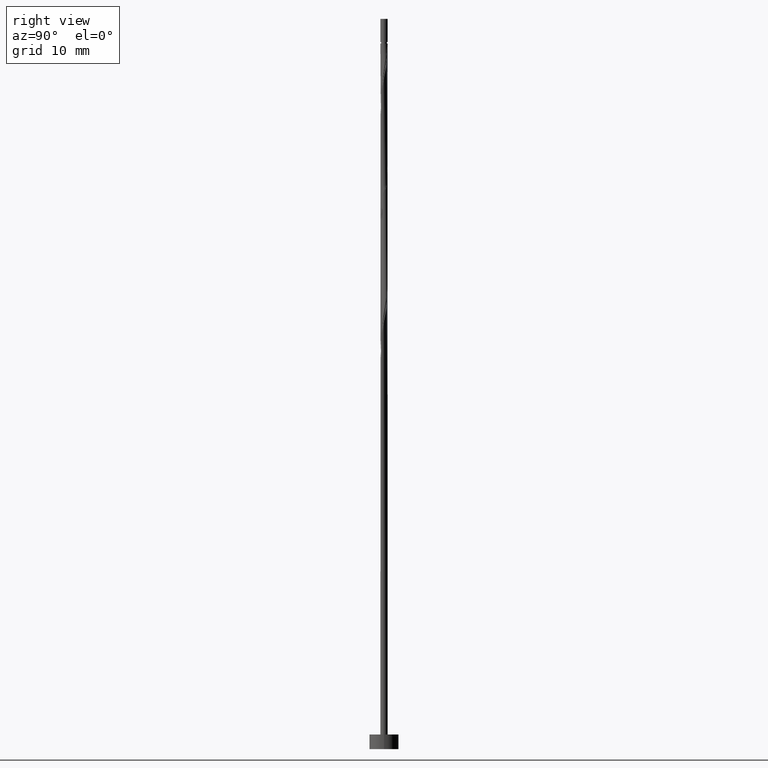
[diagram: clean part render]
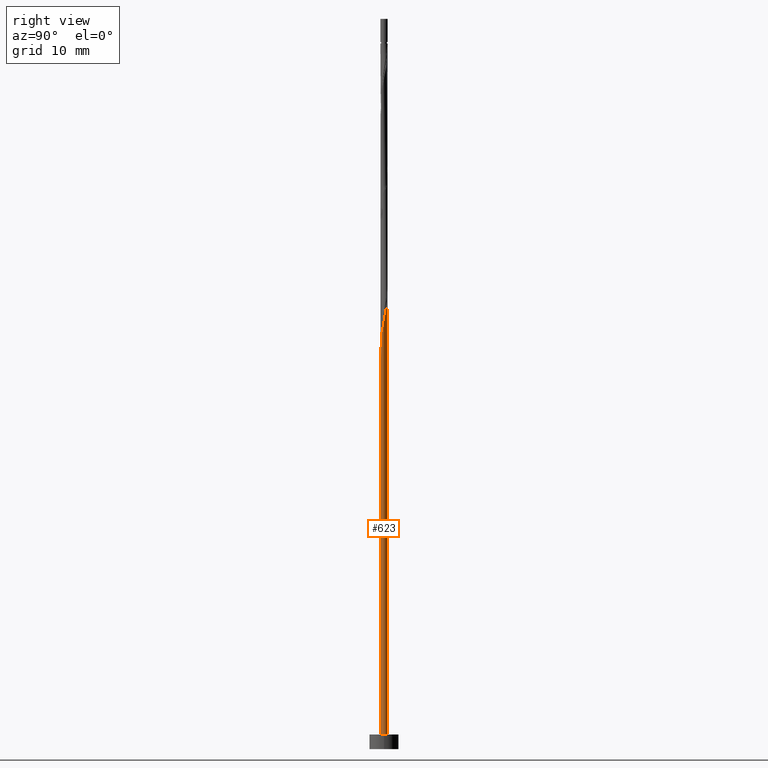
[diagram: same view with one face highlighted and labeled with its STEP entity id]
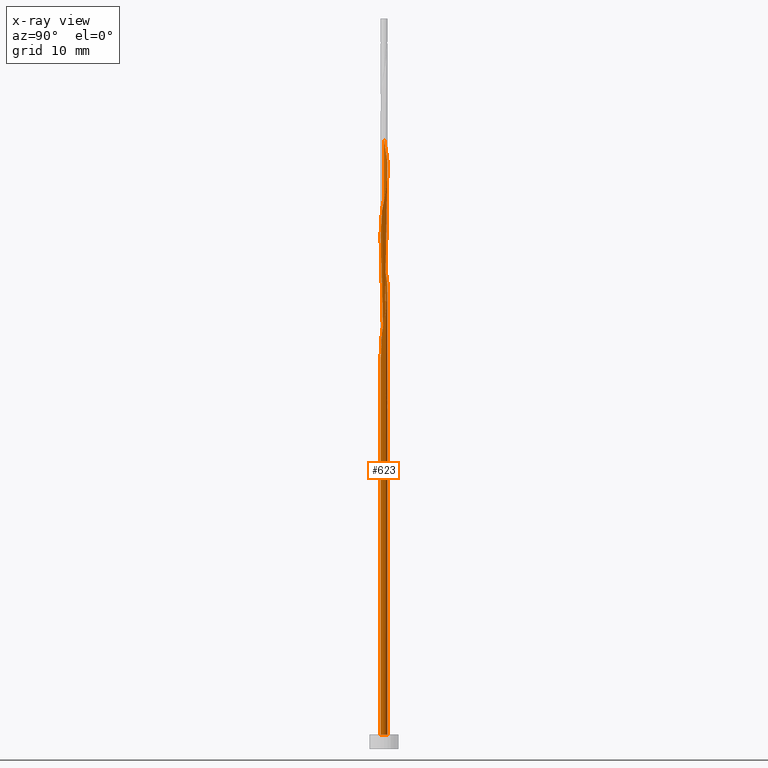
[diagram: x-ray of the same camera — body ghosted, the highlighted face saturated]
A machine part, right view. The second image highlights one B-rep face of the part: STEP entity #623.
The next image is the same camera in x-ray: the body ghosted, the highlighted face saturated — about 0% of this face is hidden behind the body in this view.
In plain terms, the highlighted cylindrical surface (bore or boss wall) has radius 0.5 mm, axis along (-0, -0, -1).
Its self-contained STEP definition (entity closure, byte-faithful):
#7 = CARTESIAN_POINT ( 'NONE',  ( -0.4975590398240158918, -0.1010336722130057152, 50.78496922904236044 ) ) ;
#12 = CARTESIAN_POINT ( 'NONE',  ( -0.3362772466861008724, 0.3803819322636879940, 64.67385811793124617 ) ) ;
#13 = ORIENTED_EDGE ( 'NONE', *, *, #1249, .T. ) ;
#15 = CARTESIAN_POINT ( 'NONE',  ( -0.2387454690295326420, -0.4393183367648896831, 53.09978404385717710 ) ) ;
#72 = CARTESIAN_POINT ( 'NONE',  ( -0.1612817931379151026, 0.4814156044766937925, 48.00719145126458187 ) ) ;
#81 = CARTESIAN_POINT ( 'NONE',  ( 0.3911863884632767463, -0.3114052174917096849, 73.47015441422750825 ) ) ;
#96 = CARTESIAN_POINT ( 'NONE',  ( 0.5021081091789605377, -0.07523461788412863505, 74.85904330311646504 ) ) ;
#99 = CARTESIAN_POINT ( 'NONE',  ( -0.2387454690295326420, -0.4393183367648896831, 69.76645071052384139 ) ) ;
#105 = CARTESIAN_POINT ( 'NONE',  ( -0.4329970070769387780, -0.2651158103430558133, 68.37756182163495566 ) ) ;
#111 =( BOUNDED_CURVE ( )  B_SPLINE_CURVE ( 2, ( #1265, #1064, #428, #7, #219, #657, #953, #210, #15, #748, #1269, #550, #941, #1367, #117, #451, #320, #331, #844, #1259, #965, #858, #1250, #308, #733, #1150, #240, #1050, #317, #207, #1060, #739, #548, #12, #1171, #448, #203, #655, #1069, #114, #556, #105, #197, #639, #99, #534, #1364, #1136, #418, #285, #838, #715, #81, #1251, #309, #96, #530, #859, #770, #566, #875, #544, #959, #1292, #1178, #749, #1161, #763, #211, #233, #651, #559, #1173, #1072, #1066 ),
 .UNSPECIFIED., .F., .T. ) 
 B_SPLINE_CURVE_WITH_KNOTS ( ( 3, 2, 2, 2, 2, 2, 2, 2, 2, 2, 2, 2, 2, 2, 2, 2, 2, 2, 2, 2, 2, 2, 2, 2, 2, 2, 2, 2, 2, 2, 2, 2, 2, 2, 2, 2, 2, 3 ),
 ( 0.05452480538552874345, 0.05555555555555558023, 0.06944444444444441977, 0.08333333333333337034, 0.09722222222222220989, 0.1111111111111111605, 0.1250000000000000000, 0.1388888888888888395, 0.1527777777777777901, 0.1666666666666666297, 0.1805555555555555802, 0.1944444444444444198, 0.2083333333333333703, 0.2222222222222222099, 0.2361111111111111605, 0.2500000000000000000, 0.2638888888888888395, 0.2777777777777777901, 0.2916666666666666297, 0.3055555555555555802, 0.3194444444444444198, 0.3333333333333333703, 0.3472222222222222099, 0.3611111111111111605, 0.3750000000000000000, 0.3888888888888888395, 0.4027777777777777901, 0.4166666666666666297, 0.4305555555555555802, 0.4444444444444444198, 0.4583333333333333703, 0.4722222222222222099, 0.4861111111111111605, 0.5000000000000000000, 0.5138888888888888395, 0.5277777777777777901, 0.5416666666666667407, 0.5545248053855290626 ),
 .UNSPECIFIED. ) 
 CURVE ( )  GEOMETRIC_REPRESENTATION_ITEM ( )  RATIONAL_B_SPLINE_CURVE ( ( 0.9071930855141244754, 0.9080659294509723090, 0.9090909090909128354, 0.8952797754656471874, 0.9090909090909128354, 0.8952797754656471874, 0.9090909090909128354, 0.8952797754656471874, 0.9090909090909128354, 0.8952797754656471874, 0.9090909090909128354, 0.8952797754656471874, 0.9090909090909128354, 0.8952797754656471874, 0.9090909090909128354, 0.8952797754656471874, 0.9090909090909128354, 0.8952797754656471874, 0.9090909090909128354, 0.8952797754656471874, 0.9090909090909128354, 0.8952797754656471874, 0.9090909090909128354, 0.8952797754656471874, 0.9090909090909128354, 0.8952797754656471874, 0.9090909090909128354, 0.8952797754656471874, 0.9090909090909128354, 0.8952797754656471874, 0.9090909090909128354, 0.8952797754656471874, 0.9090909090909128354, 0.8952797754656471874, 0.9090909090909128354, 0.8952797754656471874, 0.9090909090909128354, 0.8952797754656471874, 0.9090909090909128354, 0.8952797754656471874, 0.9090909090909128354, 0.8952797754656471874, 0.9090909090909128354, 0.8952797754656471874, 0.9090909090909128354, 0.8952797754656471874, 0.9090909090909128354, 0.8952797754656471874, 0.9090909090909128354, 0.8952797754656471874, 0.9090909090909128354, 0.8952797754656471874, 0.9090909090909128354, 0.8952797754656471874, 0.9090909090909128354, 0.8952797754656471874, 0.9090909090909128354, 0.8952797754656471874, 0.9090909090909128354, 0.8952797754656471874, 0.9090909090909128354, 0.8952797754656471874, 0.9090909090909128354, 0.8952797754656471874, 0.9090909090909128354, 0.8952797754656471874, 0.9090909090909128354, 0.8952797754656471874, 0.9090909090909128354, 0.8952797754656471874, 0.9090909090909128354, 0.8952797754656471874, 0.9090909090909128354, 0.8963047551055872697, 0.9071930855141250305 ) ) 
 REPRESENTATION_ITEM ( '' )  );
#114 = CARTESIAN_POINT ( 'NONE',  ( -0.4975590398240158918, -0.1010336722130057152, 67.45163589570903184 ) ) ;
#117 = CARTESIAN_POINT ( 'NONE',  ( 0.2610881054719553229, -0.4264188096004510875, 55.87756182163496277 ) ) ;
#118 = CARTESIAN_POINT ( 'NONE',  ( -0.4975590398240160028, 0.1010336722130057568, 50.78496922904235333 ) ) ;
#134 = CARTESIAN_POINT ( 'NONE',  ( -0.3362772466861008724, 0.3803819322636879940, 48.00719145126458187 ) ) ;
#168 = AXIS2_PLACEMENT_3D ( 'NONE', #633, #410, #1247 ) ;
#185 = CARTESIAN_POINT ( 'NONE',  ( -0.3162091449211504313, 0.3972210690530861843, 48.93311737719051280 ) ) ;
#190 = CYLINDRICAL_SURFACE ( 'NONE', #168, 0.5000000000000000000 ) ;
#192 =( BOUNDED_CURVE ( )  B_SPLINE_CURVE ( 2, ( #1340, #1065, #850, #118, #867, #696, #258, #185, #1014, #72, #415, #834, #305 ),
 .UNSPECIFIED., .F., .T. ) 
 B_SPLINE_CURVE_WITH_KNOTS ( ( 3, 2, 2, 2, 2, 2, 3 ),
 ( 0.9295248053855291737, 0.9305555555555555802, 0.9444444444444444198, 0.9583333333333333703, 0.9722222222222222099, 0.9861111111111111605, 1.000000000000000000 ),
 .UNSPECIFIED. ) 
 CURVE ( )  GEOMETRIC_REPRESENTATION_ITEM ( )  RATIONAL_B_SPLINE_CURVE ( ( 0.9071930855141259187, 0.9080659294509735302, 0.9090909090909135015, 0.8952797754656478535, 0.9090909090909135015, 0.8952797754656478535, 0.9090909090909135015, 0.8952797754656478535, 0.9090909090909135015, 0.8952797754656478535, 0.9090909090909135015, 0.8952797754656478535, 0.9090909090909135015 ) ) 
 REPRESENTATION_ITEM ( '' )  );
#197 = CARTESIAN_POINT ( 'NONE',  ( -0.3746030759990445214, -0.3311684396980708045, 68.84052478459791757 ) ) ;
#203 = CARTESIAN_POINT ( 'NONE',  ( -0.4741018197097064957, 0.1588315603019298528, 66.06274700682013190 ) ) ;
#207 = CARTESIAN_POINT ( 'NONE',  ( -0.01309852316351411104, 0.5075443130627870225, 62.82200626607940563 ) ) ;
#210 = CARTESIAN_POINT ( 'NONE',  ( -0.3162091449211503758, -0.3972210690530861288, 52.63682108089421519 ) ) ;
#211 = CARTESIAN_POINT ( 'NONE',  ( -0.2610881054719554339, 0.4264188096004510875, 80.87756182163495566 ) ) ;
#213 = VERTEX_POINT ( 'NONE', #402 ) ;
#219 = CARTESIAN_POINT ( 'NONE',  ( -0.4652780234504771406, -0.1830747412780306671, 51.24793219200530814 ) ) ;
#233 = CARTESIAN_POINT ( 'NONE',  ( -0.3362772466861008724, 0.3803819322636879940, 81.34052478459793178 ) ) ;
#240 = CARTESIAN_POINT ( 'NONE',  ( 0.2387454690295327808, 0.4393183367648896831, 61.43311737719050569 ) ) ;
#245 = EDGE_CURVE ( 'NONE', #479, #1264, #1118, .T. ) ;
#251 = CARTESIAN_POINT ( 'NONE',  ( -0.5000000000000001110, 0.08152718591023051797, 49.82419482835463498 ) ) ;
#258 = CARTESIAN_POINT ( 'NONE',  ( -0.3746030759990444658, 0.3311684396980709155, 49.39608034015347471 ) ) ;
#263 = CARTESIAN_POINT ( 'NONE',  ( -0.2610881054719554339, 0.4264188096004510875, 47.54422848830160575 ) ) ;
#285 = CARTESIAN_POINT ( 'NONE',  ( 0.1858989642578099122, -0.4724556869372144585, 72.08126552533865095 ) ) ;
#286 = AXIS2_PLACEMENT_3D ( 'NONE', #817, #1231, #712 ) ;
#305 = CARTESIAN_POINT ( 'NONE',  ( 0.09949874371066222412, 0.4900000000000007683, 46.61830256237568904 ) ) ;
#308 = CARTESIAN_POINT ( 'NONE',  ( 0.4329970070769388890, 0.2651158103430554802, 60.04422848830162707 ) ) ;
#309 = CARTESIAN_POINT ( 'NONE',  ( 0.4741018197097064957, -0.1588315603019301303, 74.39608034015344629 ) ) ;
#311 = CIRCLE ( 'NONE', #340, 0.5000000000000000000 ) ;
#317 = CARTESIAN_POINT ( 'NONE',  ( 0.07409163498720082452, 0.4944799587697402687, 62.35904330311641530 ) ) ;
#318 = ORIENTED_EDGE ( 'NONE', *, *, #532, .F. ) ;
#320 = CARTESIAN_POINT ( 'NONE',  ( 0.3911863884632767463, -0.3114052174917096849, 56.80348774756087948 ) ) ;
#331 = CARTESIAN_POINT ( 'NONE',  ( 0.4460955302404527312, -0.2424285027197315423, 57.26645071052384139 ) ) ;
#333 = EDGE_CURVE ( 'NONE', #213, #783, #1019, .T. ) ;
#340 = AXIS2_PLACEMENT_3D ( 'NONE', #826, #1031, #1239 ) ;
#347 = CARTESIAN_POINT ( 'NONE',  ( -0.5000000000000005551, 3.417288597601937706E-16, 50.25411434072024974 ) ) ;
#352 = ORIENTED_EDGE ( 'NONE', *, *, #245, .F. ) ;
#374 = EDGE_LOOP ( 'NONE', ( #352, #318, #454, #13, #969, #731, #1147, #644, #464 ) ) ;
#397 = CARTESIAN_POINT ( 'NONE',  ( -0.5000000000000006661, -2.987793309378743319E-16, 83.58744767405360676 ) ) ;
#402 = CARTESIAN_POINT ( 'NONE',  ( -0.5000000000000005551, 3.417288597601937706E-16, 50.25411434072024974 ) ) ;
#407 = AXIS2_PLACEMENT_3D ( 'NONE', #1260, #512, #713 ) ;
#410 = DIRECTION ( 'NONE',  ( -0.000000000000000000, -0.000000000000000000, -1.000000000000000000 ) ) ;
#415 = CARTESIAN_POINT ( 'NONE',  ( -0.07409163498720043595, 0.4944799587697403798, 47.54422848830161996 ) ) ;
#418 = CARTESIAN_POINT ( 'NONE',  ( 0.09949874371066205758, -0.4900000000000006573, 71.61830256237570325 ) ) ;
#420 = EDGE_CURVE ( 'NONE', #1255, #213, #897, .T. ) ;
#428 = CARTESIAN_POINT ( 'NONE',  ( -0.4998335745014879095, -0.01289952716443868060, 50.32200626607938432 ) ) ;
#448 = CARTESIAN_POINT ( 'NONE',  ( -0.4460955302404527867, 0.2424285027197314868, 65.59978404385718420 ) ) ;
#451 = CARTESIAN_POINT ( 'NONE',  ( 0.3362772466861007614, -0.3803819322636881051, 56.34052478459791047 ) ) ;
#454 = ORIENTED_EDGE ( 'NONE', *, *, #333, .T. ) ;
#458 = CIRCLE ( 'NONE', #407, 0.5000000000000000000 ) ;
#464 = ORIENTED_EDGE ( 'NONE', *, *, #1291, .F. ) ;
#479 = VERTEX_POINT ( 'NONE', #397 ) ;
#487 = VERTEX_POINT ( 'NONE', #1017 ) ;
#497 = VECTOR ( 'NONE', #505, 1000.000000000000000 ) ;
#504 = DIRECTION ( 'NONE',  ( -0.000000000000000000, -0.000000000000000000, -1.000000000000000000 ) ) ;
#505 = DIRECTION ( 'NONE',  ( -0.000000000000000000, -0.000000000000000000, -1.000000000000000000 ) ) ;
#512 = DIRECTION ( 'NONE',  ( 0.000000000000000000, 0.000000000000000000, 1.000000000000000000 ) ) ;
#518 = EDGE_CURVE ( 'NONE', #1255, #487, #711, .T. ) ;
#530 = CARTESIAN_POINT ( 'NONE',  ( 0.4998335745014879095, 0.01289952716443871876, 75.32200626607939853 ) ) ;
#532 = EDGE_CURVE ( 'NONE', #213, #479, #111, .T. ) ;
#534 = CARTESIAN_POINT ( 'NONE',  ( -0.1612817931379150194, -0.4814156044766936815, 70.22941367348681752 ) ) ;
#544 = CARTESIAN_POINT ( 'NONE',  ( 0.3162091449211503758, 0.3972210690530861288, 77.63682108089423650 ) ) ;
#548 = CARTESIAN_POINT ( 'NONE',  ( -0.2610881054719554339, 0.4264188096004510875, 64.21089515496829847 ) ) ;
#550 = CARTESIAN_POINT ( 'NONE',  ( 0.01309852316351395145, -0.5075443130627870225, 54.48867293274608414 ) ) ;
#556 = CARTESIAN_POINT ( 'NONE',  ( -0.4652780234504771406, -0.1830747412780306671, 67.91459885867197954 ) ) ;
#559 = CARTESIAN_POINT ( 'NONE',  ( -0.4460955302404527867, 0.2424285027197314868, 82.26645071052386982 ) ) ;
#566 = CARTESIAN_POINT ( 'NONE',  ( 0.4329970070769388890, 0.2651158103430554802, 76.71089515496827005 ) ) ;
#623 = ADVANCED_FACE ( 'NONE', ( #625 ), #190, .T. ) ;
#625 = FACE_OUTER_BOUND ( 'NONE', #374, .T. ) ;
#633 = CARTESIAN_POINT ( 'NONE',  ( 0.000000000000000000, 0.000000000000000000, 100.0000000000000000 ) ) ;
#639 = CARTESIAN_POINT ( 'NONE',  ( -0.3162091449211503758, -0.3972210690530861288, 69.30348774756086527 ) ) ;
#644 = ORIENTED_EDGE ( 'NONE', *, *, #518, .T. ) ;
#649 = CARTESIAN_POINT ( 'NONE',  ( -0.5000000000000000000, 0.000000000000000000, 2.000000000000000000 ) ) ;
#651 = CARTESIAN_POINT ( 'NONE',  ( -0.3911863884632767463, 0.3114052174917096849, 81.80348774756086527 ) ) ;
#655 = CARTESIAN_POINT ( 'NONE',  ( -0.5021081091789605377, 0.07523461788412835749, 66.52570996978310802 ) ) ;
#657 = CARTESIAN_POINT ( 'NONE',  ( -0.4329970070769387780, -0.2651158103430558133, 51.71089515496829847 ) ) ;
#696 = CARTESIAN_POINT ( 'NONE',  ( -0.4329970070769387225, 0.2651158103430559243, 49.85904330311643662 ) ) ;
#711 = CIRCLE ( 'NONE', #286, 0.5000000000000000000 ) ;
#712 = DIRECTION ( 'NONE',  ( 0.000000000000000000, 1.000000000000000000, -6.938893903907228378E-14 ) ) ;
#713 = DIRECTION ( 'NONE',  ( 1.000000000000000000, 0.000000000000000000, 0.000000000000000000 ) ) ;
#715 = CARTESIAN_POINT ( 'NONE',  ( 0.3362772466861007614, -0.3803819322636881051, 73.00719145126456056 ) ) ;
#717 = CARTESIAN_POINT ( 'NONE',  ( -0.5000000000000000000, 0.000000000000000000, 100.0000000000000000 ) ) ;
#731 = ORIENTED_EDGE ( 'NONE', *, *, #333, .F. ) ;
#733 = CARTESIAN_POINT ( 'NONE',  ( 0.3746030759990444658, 0.3311684396980709710, 60.50719145126458187 ) ) ;
#739 = CARTESIAN_POINT ( 'NONE',  ( -0.1858989642578100232, 0.4724556869372143475, 63.74793219200532235 ) ) ;
#748 = CARTESIAN_POINT ( 'NONE',  ( -0.1612817931379150194, -0.4814156044766936815, 53.56274700682014611 ) ) ;
#749 = CARTESIAN_POINT ( 'NONE',  ( -0.01309852316351411104, 0.5075443130627870225, 79.48867293274605572 ) ) ;
#763 = CARTESIAN_POINT ( 'NONE',  ( -0.1858989642578100232, 0.4724556869372143475, 80.41459885867199375 ) ) ;
#770 = CARTESIAN_POINT ( 'NONE',  ( 0.4652780234504772516, 0.1830747412780305006, 76.24793219200532235 ) ) ;
#783 = VERTEX_POINT ( 'NONE', #649 ) ;
#799 = VECTOR ( 'NONE', #504, 1000.000000000000000 ) ;
#817 = CARTESIAN_POINT ( 'NONE',  ( 0.000000000000000000, 0.000000000000000000, 46.61830256237572456 ) ) ;
#826 = CARTESIAN_POINT ( 'NONE',  ( 0.000000000000000000, 0.000000000000000000, 2.000000000000000000 ) ) ;
#834 = CARTESIAN_POINT ( 'NONE',  ( 0.01309852316351413186, 0.5075443130627872446, 47.08126552533865095 ) ) ;
#838 = CARTESIAN_POINT ( 'NONE',  ( 0.2610881054719553229, -0.4264188096004510875, 72.54422848830161286 ) ) ;
#844 = CARTESIAN_POINT ( 'NONE',  ( 0.4741018197097064957, -0.1588315603019301303, 57.72941367348680330 ) ) ;
#850 = CARTESIAN_POINT ( 'NONE',  ( -0.4998335745014880205, 0.01289952716443872570, 51.24793219200531524 ) ) ;
#858 = CARTESIAN_POINT ( 'NONE',  ( 0.4975590398240158918, 0.1010336722130056458, 59.11830256237570325 ) ) ;
#859 = CARTESIAN_POINT ( 'NONE',  ( 0.4975590398240158918, 0.1010336722130056458, 75.78496922904233202 ) ) ;
#867 = CARTESIAN_POINT ( 'NONE',  ( -0.4652780234504771961, 0.1830747412780307504, 50.32200626607937721 ) ) ;
#875 = CARTESIAN_POINT ( 'NONE',  ( 0.3746030759990444658, 0.3311684396980709710, 77.17385811793124617 ) ) ;
#897 =( BOUNDED_CURVE ( )  B_SPLINE_CURVE ( 2, ( #1209, #1103, #263, #134, #1202, #1306, #1188, #251, #347 ),
 .UNSPECIFIED., .F., .T. ) 
 B_SPLINE_CURVE_WITH_KNOTS ( ( 3, 2, 2, 2, 3 ),
 ( 0.000000000000000000, 0.01388888888888884128, 0.02777777777777779011, 0.04166666666666662966, 0.05452480538552874345 ),
 .UNSPECIFIED. ) 
 CURVE ( )  GEOMETRIC_REPRESENTATION_ITEM ( )  RATIONAL_B_SPLINE_CURVE ( ( 0.9090909090909128354, 0.8952797754656471874, 0.9090909090909128354, 0.8952797754656471874, 0.9090909090909128354, 0.8952797754656471874, 0.9090909090909128354, 0.8963047551055876028, 0.9071930855141244754 ) ) 
 REPRESENTATION_ITEM ( '' )  );
#912 = CARTESIAN_POINT ( 'NONE',  ( -0.5000000000000000000, 0.000000000000000000, 100.0000000000000000 ) ) ;
#926 = CARTESIAN_POINT ( 'NONE',  ( -0.5000000000000006661, -2.913098476644272801E-16, 51.31582411736444271 ) ) ;
#941 = CARTESIAN_POINT ( 'NONE',  ( 0.09949874371066205758, -0.4900000000000006573, 54.95163589570901053 ) ) ;
#953 = CARTESIAN_POINT ( 'NONE',  ( -0.3746030759990445214, -0.3311684396980708045, 52.17385811793126749 ) ) ;
#959 = CARTESIAN_POINT ( 'NONE',  ( 0.2387454690295327808, 0.4393183367648896831, 78.09978404385719841 ) ) ;
#965 = CARTESIAN_POINT ( 'NONE',  ( 0.4998335745014879095, 0.01289952716443871876, 58.65533959941272713 ) ) ;
#969 = ORIENTED_EDGE ( 'NONE', *, *, #986, .T. ) ;
#986 = EDGE_CURVE ( 'NONE', #1172, #783, #311, .T. ) ;
#1014 = CARTESIAN_POINT ( 'NONE',  ( -0.2387454690295326698, 0.4393183367648898496, 48.47015441422755089 ) ) ;
#1017 = CARTESIAN_POINT ( 'NONE',  ( 0.09949874371066222412, 0.4900000000000007683, 46.61830256237568904 ) ) ;
#1019 = LINE ( 'NONE', #717, #799 ) ;
#1031 = DIRECTION ( 'NONE',  ( 0.000000000000000000, 0.000000000000000000, 1.000000000000000000 ) ) ;
#1050 = CARTESIAN_POINT ( 'NONE',  ( 0.1612817931379153524, 0.4814156044766935705, 61.89608034015348181 ) ) ;
#1060 = CARTESIAN_POINT ( 'NONE',  ( -0.09949874371066198819, 0.4900000000000006573, 63.28496922904236754 ) ) ;
#1064 = CARTESIAN_POINT ( 'NONE',  ( -0.5000000000000006661, -0.006450837166008346890, 50.28813171465261433 ) ) ;
#1065 = CARTESIAN_POINT ( 'NONE',  ( -0.5000000000000006661, 0.006450837166011088621, 51.28180674343208523 ) ) ;
#1066 = CARTESIAN_POINT ( 'NONE',  ( -0.5000000000000006661, -2.987793309378743813E-16, 83.58744767405360676 ) ) ;
#1069 = CARTESIAN_POINT ( 'NONE',  ( -0.4998335745014879095, -0.01289952716443868060, 66.98867293274605572 ) ) ;
#1072 = CARTESIAN_POINT ( 'NONE',  ( -0.5000000000000007772, 0.08152718591022863059, 83.15752816168800621 ) ) ;
#1103 = CARTESIAN_POINT ( 'NONE',  ( -0.1858989642578100232, 0.4724556869372143475, 47.08126552533864384 ) ) ;
#1118 = LINE ( 'NONE', #912, #497 ) ;
#1128 = CARTESIAN_POINT ( 'NONE',  ( -0.09949874371066197432, 0.4900000000000007683, 46.61830256237568904 ) ) ;
#1136 = CARTESIAN_POINT ( 'NONE',  ( 0.01309852316351395145, -0.5075443130627870225, 71.15533959941271291 ) ) ;
#1147 = ORIENTED_EDGE ( 'NONE', *, *, #420, .F. ) ;
#1150 = CARTESIAN_POINT ( 'NONE',  ( 0.3162091449211503758, 0.3972210690530861288, 60.97015441422754378 ) ) ;
#1161 = CARTESIAN_POINT ( 'NONE',  ( -0.09949874371066198819, 0.4900000000000006573, 79.95163589570901763 ) ) ;
#1171 = CARTESIAN_POINT ( 'NONE',  ( -0.3911863884632767463, 0.3114052174917096849, 65.13682108089419387 ) ) ;
#1172 = VERTEX_POINT ( 'NONE', #1307 ) ;
#1173 = CARTESIAN_POINT ( 'NONE',  ( -0.4741018197097064957, 0.1588315603019298528, 82.72941367348678909 ) ) ;
#1178 = CARTESIAN_POINT ( 'NONE',  ( 0.07409163498720082452, 0.4944799587697402687, 79.02570996978310802 ) ) ;
#1188 = CARTESIAN_POINT ( 'NONE',  ( -0.4741018197097064957, 0.1588315603019298528, 49.39608034015346760 ) ) ;
#1202 = CARTESIAN_POINT ( 'NONE',  ( -0.3911863884632767463, 0.3114052174917096849, 48.47015441422755089 ) ) ;
#1209 = CARTESIAN_POINT ( 'NONE',  ( -0.09949874371066196044, 0.4900000000000007683, 46.61830256237568904 ) ) ;
#1231 = DIRECTION ( 'NONE',  ( 0.000000000000000000, -6.938893903907225853E-14, -1.000000000000000000 ) ) ;
#1239 = DIRECTION ( 'NONE',  ( 1.000000000000000000, 0.000000000000000000, 0.000000000000000000 ) ) ;
#1247 = DIRECTION ( 'NONE',  ( -1.000000000000000000, 0.000000000000000000, 0.000000000000000000 ) ) ;
#1249 = EDGE_CURVE ( 'NONE', #783, #1172, #458, .T. ) ;
#1250 = CARTESIAN_POINT ( 'NONE',  ( 0.4652780234504772516, 0.1830747412780305006, 59.58126552533865095 ) ) ;
#1251 = CARTESIAN_POINT ( 'NONE',  ( 0.4460955302404527312, -0.2424285027197315423, 73.93311737719051280 ) ) ;
#1255 = VERTEX_POINT ( 'NONE', #1128 ) ;
#1259 = CARTESIAN_POINT ( 'NONE',  ( 0.5021081091789605377, -0.07523461788412863505, 58.19237663644977232 ) ) ;
#1260 = CARTESIAN_POINT ( 'NONE',  ( 0.000000000000000000, 0.000000000000000000, 2.000000000000000000 ) ) ;
#1264 = VERTEX_POINT ( 'NONE', #926 ) ;
#1265 = CARTESIAN_POINT ( 'NONE',  ( -0.5000000000000005551, 3.417288597601937706E-16, 50.25411434072024974 ) ) ;
#1269 = CARTESIAN_POINT ( 'NONE',  ( -0.07409163498720053309, -0.4944799587697403798, 54.02570996978310092 ) ) ;
#1291 = EDGE_CURVE ( 'NONE', #1264, #487, #192, .T. ) ;
#1292 = CARTESIAN_POINT ( 'NONE',  ( 0.1612817931379153524, 0.4814156044766935705, 78.56274700682013190 ) ) ;
#1306 = CARTESIAN_POINT ( 'NONE',  ( -0.4460955302404527867, 0.2424285027197314868, 48.93311737719049859 ) ) ;
#1307 = CARTESIAN_POINT ( 'NONE',  ( 0.5000000000000000000, 0.000000000000000000, 2.000000000000000000 ) ) ;
#1340 = CARTESIAN_POINT ( 'NONE',  ( -0.5000000000000006661, -2.913098476644273294E-16, 51.31582411736444271 ) ) ;
#1364 = CARTESIAN_POINT ( 'NONE',  ( -0.07409163498720053309, -0.4944799587697403798, 70.69237663644976521 ) ) ;
#1367 = CARTESIAN_POINT ( 'NONE',  ( 0.1858989642578099122, -0.4724556869372144585, 55.41459885867198665 ) ) ;